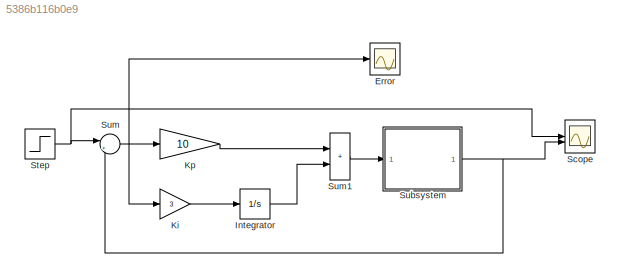
MODEL slx_5386b116b0e9
KIND model
CONFIG AbsTol = auto
CONFIG EnableMultiTasking = off
CONFIG FixedStep = auto
CONFIG MaxStep = 0.2
CONFIG MinStep = auto
CONFIG RelTol = 1e-3
CONFIG SampleTimeConstraint = Unconstrained
CONFIG SolverName = ode45
CONFIG StartTime = 0.0
CONFIG StopTime = 50
BLOCK [Scope] Error
  Floating = off
  NumInputPorts = 1
  ScopeSpecificationString = Simulink.scopes.TimeScopeBlockCfg('CurrentConfiguration', extmgr.ConfigurationSet(extmgr.Configuration('Core','General UI',true),extmgr.Configuration('Core','Source UI',true),extmgr.Configuration('Sources','WiredSimulink',true,'DataLoggingVariableName','ScopeData1'),extmgr.Configuration('Visuals','Time Domain',true,'SerializedDisplays',{struct('MinYLimReal','-1.97876','MaxYLimReal','1.33097','YLab...<+1533ch>
BLOCK [Integrator] Integrator
BLOCK [Gain] Ki
  Gain = 3
BLOCK [Gain] Kp
  Gain = 10
BLOCK [Scope] Scope
  Floating = off
  NumInputPorts = 2
  ScopeSpecificationString = Simulink.scopes.TimeScopeBlockCfg('CurrentConfiguration', extmgr.ConfigurationSet(extmgr.Configuration('Core','General UI',true),extmgr.Configuration('Core','Source UI',true),extmgr.Configuration('Sources','WiredSimulink',true),extmgr.Configuration('Visuals','Time Domain',true,'SerializedDisplays',{struct('MinYLimReal','-0.28527','MaxYLimReal','2.56742','YLabelReal','','MinYLimMag','0.00000','MaxY...<+1462ch>
BLOCK [Step] Step
  SampleTime = 0
  Time = 0
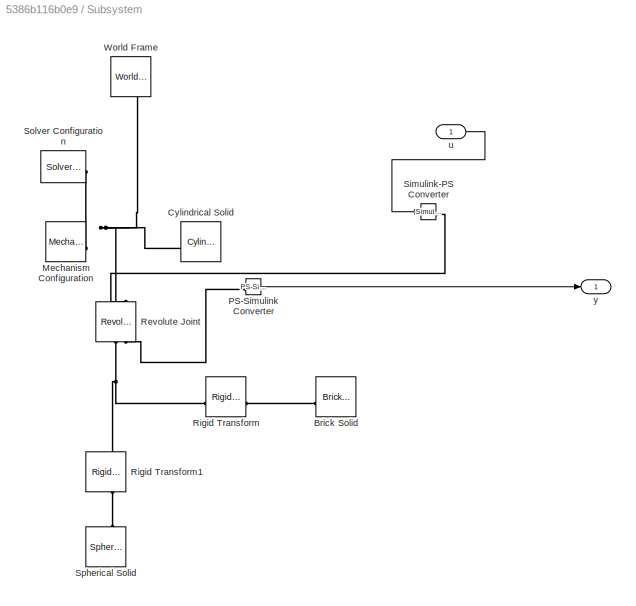
BLOCK [SubSystem] Subsystem
BLOCK [Reference] Subsystem/Brick Solid  REF=sm_lib/Body Elements/Brick Solid
  NameLocation = top
  SourceBlock = sm_lib/Body Elements/Brick Solid
  SourceType = Brick Solid
BLOCK [Reference] Subsystem/Cylindrical Solid  REF=sm_lib/Body Elements/Cylindrical Solid
  NameLocation = top
  SourceBlock = sm_lib/Body Elements/Cylindrical Solid
  SourceType = Cylindrical Solid
BLOCK [Reference] Subsystem/Mechanism Configuration  REF=sm_lib/Utilities/Mechanism
Configuration
  SourceBlock = sm_lib/Utilities/Mechanism\nConfiguration
  SourceType = Mechanism\nConfiguration
BLOCK [Reference] Subsystem/PS-Simulink Converter  REF=nesl_utility/PS-Simulink
Converter
  SourceBlock = nesl_utility/PS-Simulink\nConverter
  SourceType = PS-Simulink\nConverter
BLOCK [Reference] Subsystem/Revolute Joint  REF=sm_lib/Joints/Revolute Joint
  NameLocation = left
  SourceBlock = sm_lib/Joints/Revolute Joint
  SourceType = Revolute Joint
BLOCK [Reference] Subsystem/Rigid Transform  REF=sm_lib/Frames and
Transforms/Rigid
Transform
  SourceBlock = sm_lib/Frames and\nTransforms/Rigid\nTransform
  SourceType = Rigid\nTransform
BLOCK [Reference] Subsystem/Rigid Transform1  REF=sm_lib/Frames and
Transforms/Rigid
Transform
  NameLocation = left
  SourceBlock = sm_lib/Frames and\nTransforms/Rigid\nTransform
  SourceType = Rigid\nTransform
BLOCK [Reference] Subsystem/Simulink-PS Converter  REF=nesl_utility/Simulink-PS
Converter
  SourceBlock = nesl_utility/Simulink-PS\nConverter
  SourceType = Simulink-PS\nConverter
BLOCK [Reference] Subsystem/Solver Configuration  REF=nesl_utility/Solver
Configuration
  SourceBlock = nesl_utility/Solver\nConfiguration
  SourceType = Solver\nConfiguration
BLOCK [Reference] Subsystem/Spherical Solid  REF=sm_lib/Body Elements/Spherical Solid
  NameLocation = right
  SourceBlock = sm_lib/Body Elements/Spherical Solid
  SourceType = Spherical Solid
BLOCK [Reference] Subsystem/World Frame  REF=sm_lib/Frames and
Transforms/World Frame
  NameLocation = left
  SourceBlock = sm_lib/Frames and\nTransforms/World Frame
  SourceType = World Frame
BLOCK [Inport] Subsystem/u
BLOCK [Outport] Subsystem/y
BLOCK [Sum] Sum
  Inputs = |+-
BLOCK [Sum] Sum1
  IconShape = rectangular
LINE Integrator:1 -> Sum1:2
LINE Ki:1 -> Integrator:1
LINE Kp:1 -> Sum1:1
NET Step:1 -> Scope:1, Sum:1
LINE Subsystem/PS-Simulink Converter:1 -> Subsystem/y:1
LINE Subsystem/u:1 -> Subsystem/Simulink-PS Converter:1
NET Subsystem:1 -> Scope:2, Sum:2
LINE Sum1:1 -> Subsystem:1
NET Sum:1 -> Error:1, Ki:1, Kp:1
PLINE Subsystem/Brick Solid:RConn1 -- Subsystem/Rigid Transform:RConn1
PNET net1: Subsystem/Cylindrical Solid:RConn1 -- Subsystem/Mechanism Configuration:RConn1 -- Subsystem/Revolute Joint:LConn1 -- Subsystem/Solver Configuration:RConn1 -- Subsystem/World Frame:RConn1
PLINE Subsystem/PS-Simulink Converter:LConn1 -- Subsystem/Revolute Joint:RConn2
PLINE Subsystem/Revolute Joint:LConn2 -- Subsystem/Simulink-PS Converter:RConn1
PNET net2: Subsystem/Revolute Joint:RConn1 -- Subsystem/Rigid Transform1:LConn1 -- Subsystem/Rigid Transform:LConn1
PLINE Subsystem/Rigid Transform1:RConn1 -- Subsystem/Spherical Solid:RConn1
note: NET lines group one-source signal fan-out (src -> all destinations, sorted); 1:1 wires keep LINE; PNET lines group multi-terminal physical nets as a canonical sorted terminal list (undirected conserving connections); 2-terminal nets keep the pairwise PLINE form
